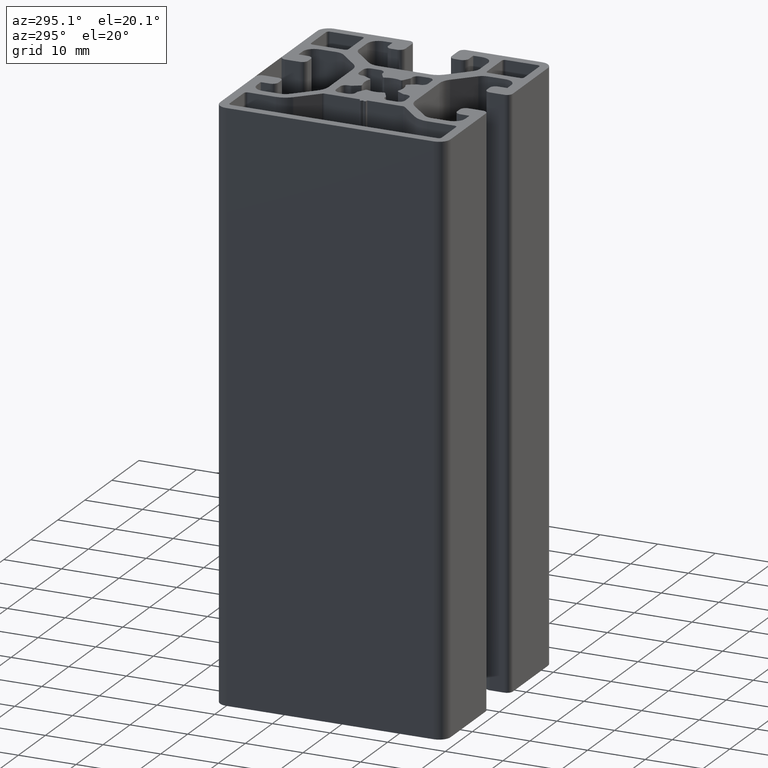
[diagram: clean part render]
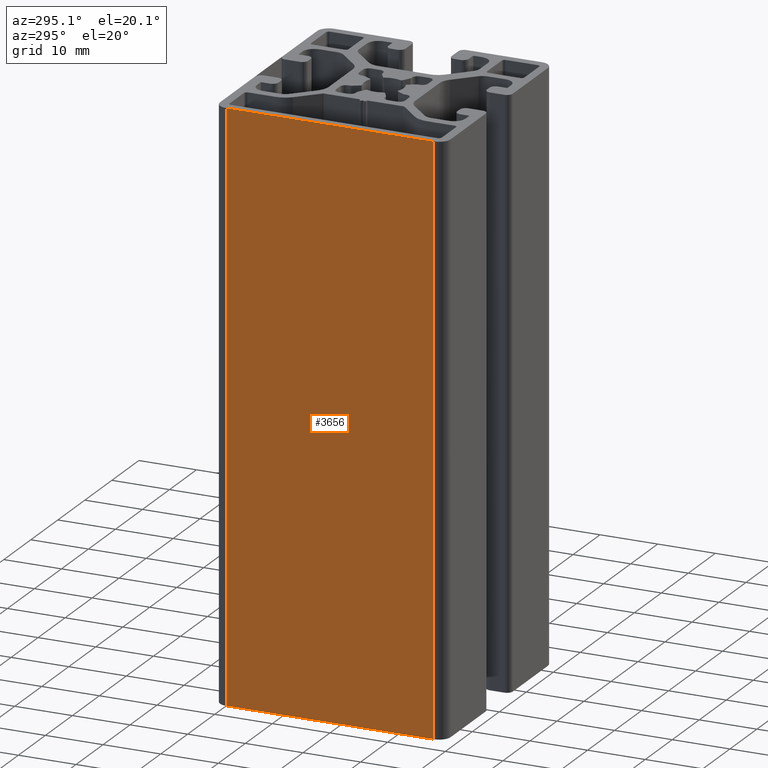
[diagram: same view with one face highlighted and labeled with its STEP entity id]
A machine part, auxiliary view. The second image highlights one B-rep face of the part: STEP entity #3656.
In plain terms, the highlighted planar face has unit normal (-1, 0, 0).
Its self-contained STEP definition (entity closure, byte-faithful):
#113=PLANE('',#4018);
#293=FACE_OUTER_BOUND('',#481,.T.);
#481=EDGE_LOOP('',(#3182,#3183,#3184,#3185));
#843=LINE('',#6169,#1206);
#847=LINE('',#6183,#1210);
#848=LINE('',#6186,#1211);
#849=LINE('',#6187,#1212);
#1206=VECTOR('',#5074,36.);
#1210=VECTOR('',#5088,100.);
#1211=VECTOR('',#5091,36.);
#1212=VECTOR('',#5092,100.);
#1750=VERTEX_POINT('',#6166);
#1751=VERTEX_POINT('',#6168);
#1756=VERTEX_POINT('',#6181);
#1757=VERTEX_POINT('',#6185);
#2284=EDGE_CURVE('',#1750,#1751,#843,.T.);
#2292=EDGE_CURVE('',#1750,#1756,#847,.T.);
#2293=EDGE_CURVE('',#1756,#1757,#848,.T.);
#2294=EDGE_CURVE('',#1751,#1757,#849,.T.);
#3182=ORIENTED_EDGE('',*,*,#2293,.T.);
#3183=ORIENTED_EDGE('',*,*,#2294,.F.);
#3184=ORIENTED_EDGE('',*,*,#2284,.F.);
#3185=ORIENTED_EDGE('',*,*,#2292,.T.);
#3656=ADVANCED_FACE('',(#293),#113,.T.);
#4018=AXIS2_PLACEMENT_3D('',#6184,#5089,#5090);
#5074=DIRECTION('',(0.,1.,0.));
#5088=DIRECTION('',(0.,0.,1.));
#5089=DIRECTION('center_axis',(-1.,0.,0.));
#5090=DIRECTION('ref_axis',(0.,-1.,0.));
#5091=DIRECTION('',(0.,1.,0.));
#5092=DIRECTION('',(0.,0.,1.));
#6166=CARTESIAN_POINT('',(-20.,-18.,0.));
#6168=CARTESIAN_POINT('',(-20.,18.,0.));
#6169=CARTESIAN_POINT('',(-20.,9.,0.));
#6181=CARTESIAN_POINT('',(-20.,-18.,100.));
#6183=CARTESIAN_POINT('',(-20.,-18.,0.));
#6184=CARTESIAN_POINT('Origin',(-20.,18.,0.));
#6185=CARTESIAN_POINT('',(-20.,18.,100.));
#6186=CARTESIAN_POINT('',(-20.,9.,100.));
#6187=CARTESIAN_POINT('',(-20.,18.,0.));